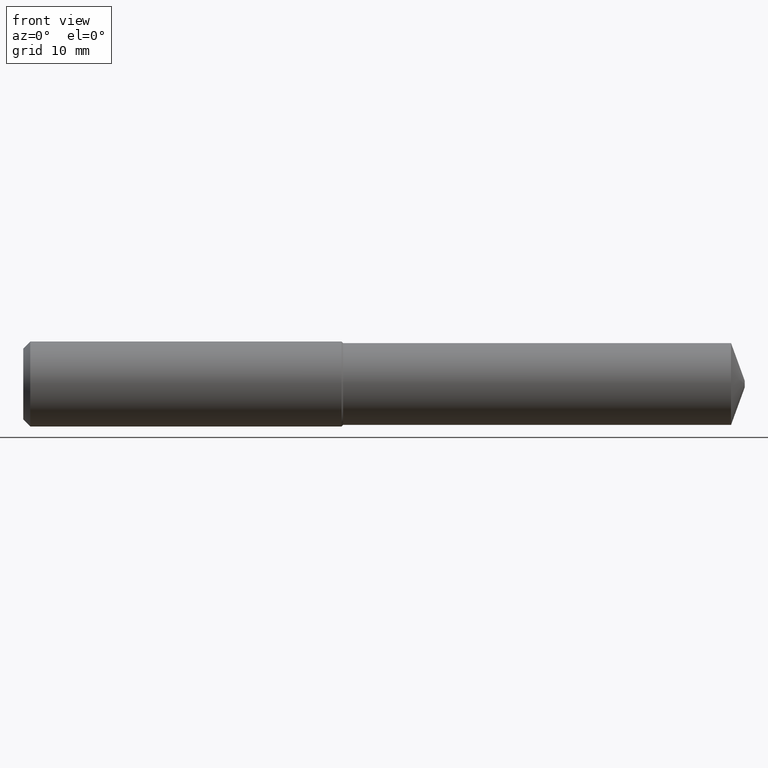
[diagram: clean part render]
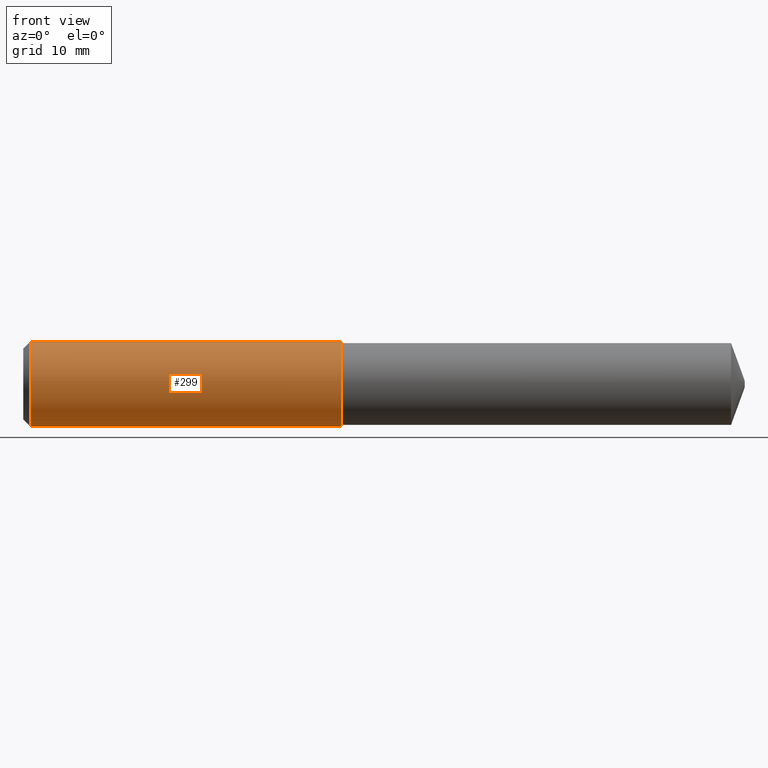
[diagram: same view with one face highlighted and labeled with its STEP entity id]
A machine part, front view. The second image highlights one B-rep face of the part: STEP entity #299.
In plain terms, the highlighted cylindrical surface (partial cylindrical patch) has radius 6 mm, axis along (1, -0, -0).
Its self-contained STEP definition (entity closure, byte-faithful):
#6 = CARTESIAN_POINT ( 'NONE',  ( -0.03808593750000075634, 2.892866454678788763E-17, 0.2362204724409450174 ) ) ;
#8 = EDGE_CURVE ( 'NONE', #167, #148, #93, .T. ) ;
#26 = ORIENTED_EDGE ( 'NONE', *, *, #8, .F. ) ;
#33 = DIRECTION ( 'NONE',  ( 1.000000000000000000, -0.000000000000000000, -0.000000000000000000 ) ) ;
#36 = DIRECTION ( 'NONE',  ( 1.000000000000000000, -0.000000000000000000, -0.000000000000000000 ) ) ;
#38 = EDGE_CURVE ( 'NONE', #133, #148, #57, .T. ) ;
#42 = CARTESIAN_POINT ( 'NONE',  ( 1.771653543307086576, 0.000000000000000000, 0.2362204724409451007 ) ) ;
#51 = AXIS2_PLACEMENT_3D ( 'NONE', #203, #231, #143 ) ;
#57 = LINE ( 'NONE', #291, #237 ) ;
#64 = LINE ( 'NONE', #6, #152 ) ;
#74 = CARTESIAN_POINT ( 'NONE',  ( -0.03808593750000075634, 0.000000000000000000, 0.000000000000000000 ) ) ;
#93 = CIRCLE ( 'NONE', #51, 0.2362204724409451007 ) ;
#99 = FACE_OUTER_BOUND ( 'NONE', #350, .T. ) ;
#102 = ORIENTED_EDGE ( 'NONE', *, *, #38, .T. ) ;
#103 = EDGE_CURVE ( 'NONE', #327, #133, #187, .T. ) ;
#107 = AXIS2_PLACEMENT_3D ( 'NONE', #74, #214, #189 ) ;
#120 = ORIENTED_EDGE ( 'NONE', *, *, #103, .T. ) ;
#126 = CARTESIAN_POINT ( 'NONE',  ( 0.03937007874015747977, 0.000000000000000000, 0.000000000000000000 ) ) ;
#133 = VERTEX_POINT ( 'NONE', #363 ) ;
#143 = DIRECTION ( 'NONE',  ( 0.000000000000000000, 0.000000000000000000, -1.000000000000000000 ) ) ;
#148 = VERTEX_POINT ( 'NONE', #160 ) ;
#152 = VECTOR ( 'NONE', #233, 39.37007874015748143 ) ;
#160 = CARTESIAN_POINT ( 'NONE',  ( 1.771653543307086576, 2.892866454678789379E-17, -0.2362204724409451007 ) ) ;
#167 = VERTEX_POINT ( 'NONE', #42 ) ;
#176 = EDGE_CURVE ( 'NONE', #327, #167, #64, .T. ) ;
#187 = CIRCLE ( 'NONE', #249, 0.2362204724409449619 ) ;
#188 = DIRECTION ( 'NONE',  ( 0.000000000000000000, 0.000000000000000000, -1.000000000000000000 ) ) ;
#189 = DIRECTION ( 'NONE',  ( 0.000000000000000000, 0.000000000000000000, -1.000000000000000000 ) ) ;
#194 = CYLINDRICAL_SURFACE ( 'NONE', #107, 0.2362204724409450174 ) ;
#203 = CARTESIAN_POINT ( 'NONE',  ( 1.771653543307086576, 0.000000000000000000, 0.000000000000000000 ) ) ;
#214 = DIRECTION ( 'NONE',  ( 1.000000000000000000, -0.000000000000000000, -0.000000000000000000 ) ) ;
#215 = CARTESIAN_POINT ( 'NONE',  ( 0.03937007874015747977, 2.892866454678788147E-17, 0.2362204724409449619 ) ) ;
#219 = ORIENTED_EDGE ( 'NONE', *, *, #176, .F. ) ;
#231 = DIRECTION ( 'NONE',  ( 1.000000000000000000, -0.000000000000000000, -0.000000000000000000 ) ) ;
#233 = DIRECTION ( 'NONE',  ( 1.000000000000000000, -0.000000000000000000, -0.000000000000000000 ) ) ;
#237 = VECTOR ( 'NONE', #33, 39.37007874015748143 ) ;
#249 = AXIS2_PLACEMENT_3D ( 'NONE', #126, #36, #188 ) ;
#291 = CARTESIAN_POINT ( 'NONE',  ( -0.03808593750000075634, 0.000000000000000000, -0.2362204724409450174 ) ) ;
#299 = ADVANCED_FACE ( 'NONE', ( #99 ), #194, .T. ) ;
#327 = VERTEX_POINT ( 'NONE', #215 ) ;
#350 = EDGE_LOOP ( 'NONE', ( #219, #120, #102, #26 ) ) ;
#363 = CARTESIAN_POINT ( 'NONE',  ( 0.03937007874015747977, 0.000000000000000000, -0.2362204724409449619 ) ) ;